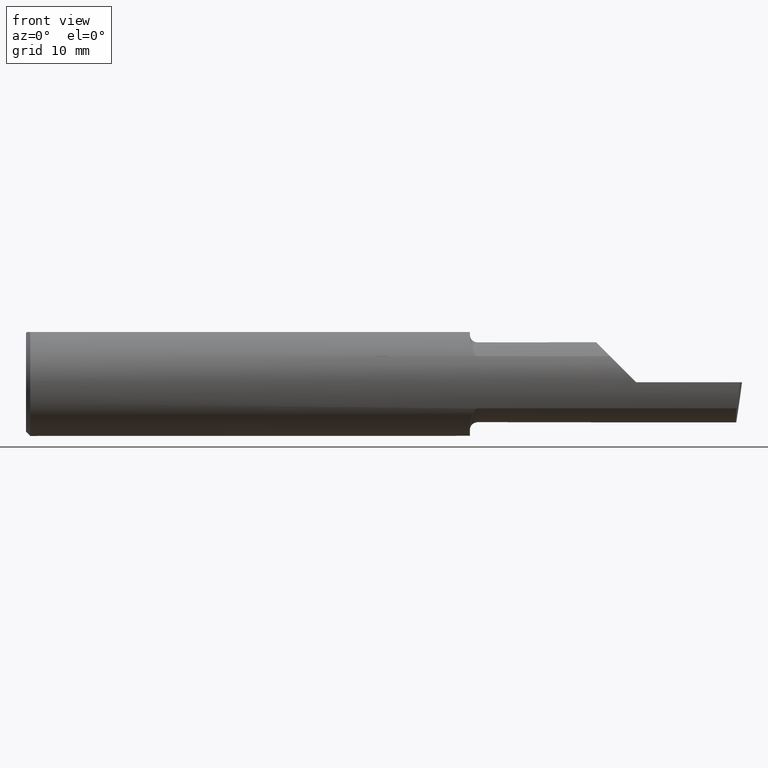
[diagram: clean part render]
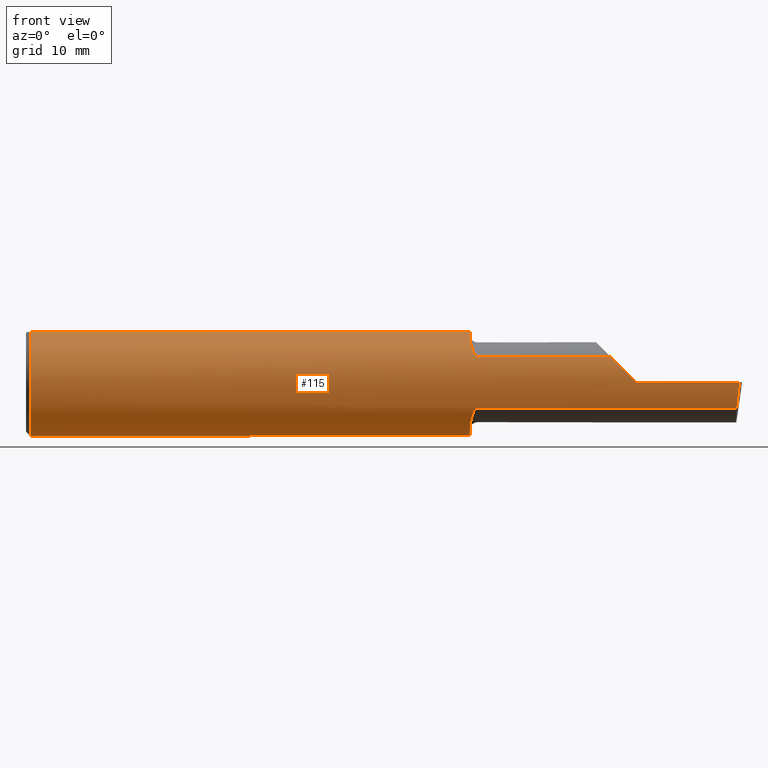
[diagram: same view with one face highlighted and labeled with its STEP entity id]
A machine part, front view. The second image highlights one B-rep face of the part: STEP entity #115.
In plain terms, the highlighted cylindrical surface (partial cylindrical patch) has radius 4.7587 mm, axis along (-1, -0, -0).
Its self-contained STEP definition (entity closure, byte-faithful):
#1 = EDGE_CURVE ( 'NONE', #158, #584, #3, .T. ) ;
#2 = LINE ( 'NONE', #202, #269 ) ;
#3 = B_SPLINE_CURVE_WITH_KNOTS ( 'NONE', 3,
 ( #91, #258, #253, #543, #369, #333, #338, #256, #131, #290, #138, #69, #579, #332 ),
 .UNSPECIFIED., .F., .F.,
 ( 4, 2, 2, 2, 2, 2, 4 ),
 ( 1.968340875534775581E-07, 0.0001667114270246267561, 0.0003332260199617000421, 0.0006662552058358466684, 0.001332313577584133416, 0.001998371949332420489, 0.002664430321080706911 ),
 .UNSPECIFIED. ) ;
#5 = CARTESIAN_POINT ( 'NONE',  ( 1.550000000000000044, -0.09715400696864107122, 0.1601908905959925078 ) ) ;
#6 = CARTESIAN_POINT ( 'NONE',  ( 1.556142321956750507, -0.1426151417460928550, 0.1217894822571234659 ) ) ;
#7 = CARTESIAN_POINT ( 'NONE',  ( 1.563764108097883687, -0.1573043405450770260, 0.1018329020719638545 ) ) ;
#8 = CARTESIAN_POINT ( 'NONE',  ( 1.558072954143139732, -0.1479074971576196940, 0.1152872342625233804 ) ) ;
#9 = VERTEX_POINT ( 'NONE', #31 ) ;
#18 = CARTESIAN_POINT ( 'NONE',  ( 1.568001859868117132, -0.1612625562479369223, 0.09537826053888208422 ) ) ;
#19 = VECTOR ( 'NONE', #274, 39.37007874015748143 ) ;
#29 = ORIENTED_EDGE ( 'NONE', *, *, #135, .T. ) ;
#31 = CARTESIAN_POINT ( 'NONE',  ( 1.550000000000000044, -0.06597272163553659363, 0.1753499999999999781 ) ) ;
#38 = VERTEX_POINT ( 'NONE', #295 ) ;
#39 = LINE ( 'NONE', #94, #19 ) ;
#40 = CARTESIAN_POINT ( 'NONE',  ( 1.566855994529494422, -0.1603175578889967923, 0.09696363432848481567 ) ) ;
#41 =( BOUNDED_CURVE ( )  B_SPLINE_CURVE ( 3, ( #470, #481, #486, #488 ),
 .UNSPECIFIED., .F., .T. ) 
 B_SPLINE_CURVE_WITH_KNOTS ( ( 4, 4 ),
 ( 0.8516985021657653698, 1.360746882515200484 ),
 .UNSPECIFIED. ) 
 CURVE ( )  GEOMETRIC_REPRESENTATION_ITEM ( )  RATIONAL_B_SPLINE_CURVE ( ( 1.000000000000000000, 0.9785221379938656705, 0.9785221379938656705, 1.000000000000000000 ) ) 
 REPRESENTATION_ITEM ( '' )  );
#57 = AXIS2_PLACEMENT_3D ( 'NONE', #436, #142, #130 ) ;
#60 = CARTESIAN_POINT ( 'NONE',  ( 1.553025912205683312, -0.1310442973014112888, 0.1341609063345044761 ) ) ;
#69 = CARTESIAN_POINT ( 'NONE',  ( 1.550384441902395327, -0.1115101367984837610, -0.1507946173152225067 ) ) ;
#70 = DIRECTION ( 'NONE',  ( -1.000000000000000000, -0.0000000000000000000, -0.0000000000000000000 ) ) ;
#74 = VECTOR ( 'NONE', #288, 39.37007874015748143 ) ;
#86 = VERTEX_POINT ( 'NONE', #502 ) ;
#91 = CARTESIAN_POINT ( 'NONE',  ( 1.574999999999999956, -0.1635956445993029529, -0.09130436773856180632 ) ) ;
#94 = CARTESIAN_POINT ( 'NONE',  ( 1.867500000000000160, -0.1635956445993030639, -0.09130436773856169530 ) ) ;
#98 = DIRECTION ( 'NONE',  ( 1.000000000000000000, 6.829619984160658046E-18, 0.0000000000000000000 ) ) ;
#100 = CARTESIAN_POINT ( 'NONE',  ( 1.570903862568969078, -0.1628809688430619407, 0.09258733509388515637 ) ) ;
#115 = ADVANCED_FACE ( 'NONE', ( #395 ), #372, .T. ) ;
#122 = ORIENTED_EDGE ( 'NONE', *, *, #381, .T. ) ;
#130 = DIRECTION ( 'NONE',  ( 0.0000000000000000000, 0.0000000000000000000, 1.000000000000000000 ) ) ;
#131 = CARTESIAN_POINT ( 'NONE',  ( 1.556145841430604637, -0.1426194794824337253, -0.1217813759115470157 ) ) ;
#135 = EDGE_CURVE ( 'NONE', #567, #251, #356, .T. ) ;
#138 = CARTESIAN_POINT ( 'NONE',  ( 1.551903396790307310, -0.1248165254919059441, -0.1399798634953948739 ) ) ;
#142 = DIRECTION ( 'NONE',  ( -1.000000000000000000, -0.0000000000000000000, -0.0000000000000000000 ) ) ;
#148 = AXIS2_PLACEMENT_3D ( 'NONE', #510, #511, #516 ) ;
#152 = EDGE_CURVE ( 'NONE', #180, #251, #534, .T. ) ;
#158 = VERTEX_POINT ( 'NONE', #214 ) ;
#162 = CARTESIAN_POINT ( 'NONE',  ( 1.574999999999999956, -0.1635956445993027031, 0.09130436773856204224 ) ) ;
#163 = ORIENTED_EDGE ( 'NONE', *, *, #556, .F. ) ;
#166 = B_SPLINE_CURVE_WITH_KNOTS ( 'NONE', 3,
 ( #5, #391, #226, #255, #60, #6, #8, #359, #7, #40, #18, #100, #236, #445 ),
 .UNSPECIFIED., .F., .F.,
 ( 4, 2, 2, 2, 2, 2, 4 ),
 ( 0.0002471551878304213972, 0.0008987327522055595184, 0.001550310316580697694, 0.002201887880955836086, 0.002527676663143405607, 0.002690571054237190368, 0.002853465445330975996 ),
 .UNSPECIFIED. ) ;
#171 = CARTESIAN_POINT ( 'NONE',  ( 2.491672876940991710, -0.1873499999999999888, 6.915950918908297591E-17 ) ) ;
#180 = VERTEX_POINT ( 'NONE', #162 ) ;
#184 = LINE ( 'NONE', #213, #74 ) ;
#187 = EDGE_CURVE ( 'NONE', #86, #158, #39, .T. ) ;
#202 = CARTESIAN_POINT ( 'NONE',  ( 3.377502344341257155E-32, -0.1873499999999999610, 3.267291166268304703E-16 ) ) ;
#204 = CIRCLE ( 'NONE', #323, 0.1873499999999999888 ) ;
#208 = AXIS2_PLACEMENT_3D ( 'NONE', #270, #275, #260 ) ;
#213 = CARTESIAN_POINT ( 'NONE',  ( 0.0000000000000000000, -0.06597272163553657975, 0.1753499999999999781 ) ) ;
#214 = CARTESIAN_POINT ( 'NONE',  ( 1.574999999999999956, -0.1635956445993029529, -0.09130436773856180632 ) ) ;
#226 = CARTESIAN_POINT ( 'NONE',  ( 1.550383728133730266, -0.1114837668894149980, 0.1508119329971097933 ) ) ;
#228 = EDGE_CURVE ( 'NONE', #38, #180, #166, .T. ) ;
#234 = ORIENTED_EDGE ( 'NONE', *, *, #365, .F. ) ;
#236 = CARTESIAN_POINT ( 'NONE',  ( 1.572800914500664504, -0.1635956445997546749, 0.09130436773775280068 ) ) ;
#238 = CARTESIAN_POINT ( 'NONE',  ( 1.550000000000000044, -0.09715400696864107122, -0.1601908905959925078 ) ) ;
#251 = VERTEX_POINT ( 'NONE', #252 ) ;
#252 = CARTESIAN_POINT ( 'NONE',  ( 2.038695632261437130, -0.1635956445993029529, 0.09130436773856188959 ) ) ;
#253 = CARTESIAN_POINT ( 'NONE',  ( 1.570881499230870171, -0.1628722075910989664, -0.09260290410947892570 ) ) ;
#255 = CARTESIAN_POINT ( 'NONE',  ( 1.551891754936544743, -0.1247344934163565761, 0.1400506178720502815 ) ) ;
#256 = CARTESIAN_POINT ( 'NONE',  ( 1.558068207442171227, -0.1478915270140208627, -0.1153063024254926960 ) ) ;
#258 = CARTESIAN_POINT ( 'NONE',  ( 1.572779935319434719, -0.1635956445993029529, -0.09130436773856194510 ) ) ;
#260 = DIRECTION ( 'NONE',  ( 0.0000000000000000000, 0.0000000000000000000, 1.000000000000000000 ) ) ;
#261 = VERTEX_POINT ( 'NONE', #527 ) ;
#265 = EDGE_CURVE ( 'NONE', #271, #567, #2, .T. ) ;
#266 = ORIENTED_EDGE ( 'NONE', *, *, #265, .T. ) ;
#269 = VECTOR ( 'NONE', #70, 39.37007874015748143 ) ;
#270 = CARTESIAN_POINT ( 'NONE',  ( 0.01499999999999999424, 0.0000000000000000000, 0.0000000000000000000 ) ) ;
#271 = VERTEX_POINT ( 'NONE', #171 ) ;
#273 = DIRECTION ( 'NONE',  ( 1.000000000000000000, 0.0000000000000000000, 0.0000000000000000000 ) ) ;
#274 = DIRECTION ( 'NONE',  ( -1.000000000000000000, -6.829619984160658046E-18, -0.0000000000000000000 ) ) ;
#275 = DIRECTION ( 'NONE',  ( -1.000000000000000000, -0.0000000000000000000, -0.0000000000000000000 ) ) ;
#281 = CARTESIAN_POINT ( 'NONE',  ( 0.0000000000000000000, 0.06597272163553663527, 0.1753499999999999781 ) ) ;
#283 = CARTESIAN_POINT ( 'NONE',  ( 2.038695632261437130, -0.1635956445993029529, 0.09130436773856188959 ) ) ;
#284 = ORIENTED_EDGE ( 'NONE', *, *, #152, .F. ) ;
#288 = DIRECTION ( 'NONE',  ( -1.000000000000000000, -0.0000000000000000000, -0.0000000000000000000 ) ) ;
#290 = CARTESIAN_POINT ( 'NONE',  ( 1.553041727949557638, -0.1311116946065050415, -0.1340922927843371804 ) ) ;
#294 = VECTOR ( 'NONE', #273, 39.37007874015748143 ) ;
#295 = CARTESIAN_POINT ( 'NONE',  ( 1.550000000000000044, -0.09715400696864107122, 0.1601908905959925078 ) ) ;
#305 = CARTESIAN_POINT ( 'NONE',  ( 2.129999999999999893, -0.1873499999999999888, 1.065442715258197396E-16 ) ) ;
#314 = EDGE_LOOP ( 'NONE', ( #465, #122, #266, #29, #284, #330, #542, #558, #163, #234, #354, #459, #317 ) ) ;
#317 = ORIENTED_EDGE ( 'NONE', *, *, #1, .F. ) ;
#320 = CIRCLE ( 'NONE', #57, 0.1873499999999999888 ) ;
#323 = AXIS2_PLACEMENT_3D ( 'NONE', #520, #522, #530 ) ;
#329 = CARTESIAN_POINT ( 'NONE',  ( 2.097861799102314961, -0.1873500000000000165, 0.03213820089768509858 ) ) ;
#330 = ORIENTED_EDGE ( 'NONE', *, *, #228, .F. ) ;
#332 = CARTESIAN_POINT ( 'NONE',  ( 1.550000000000000044, -0.09715400696864107122, -0.1601908905959925078 ) ) ;
#333 = CARTESIAN_POINT ( 'NONE',  ( 1.563743174082349752, -0.1572750258711007043, -0.1018777902325216089 ) ) ;
#337 = EDGE_CURVE ( 'NONE', #9, #432, #184, .T. ) ;
#338 = CARTESIAN_POINT ( 'NONE',  ( 1.562184598714913220, -0.1550322129197695409, -0.1052705638704085622 ) ) ;
#342 = CARTESIAN_POINT ( 'NONE',  ( 0.01499999999999999424, 0.0000000000000000000, -0.1873499999999999888 ) ) ;
#351 = EDGE_CURVE ( 'NONE', #444, #261, #566, .T. ) ;
#352 = CARTESIAN_POINT ( 'NONE',  ( 2.129999999999999893, -0.1873499999999999888, 1.065442715258197396E-16 ) ) ;
#354 = ORIENTED_EDGE ( 'NONE', *, *, #351, .T. ) ;
#356 =( BOUNDED_CURVE ( )  B_SPLINE_CURVE ( 3, ( #305, #329, #514, #283 ),
 .UNSPECIFIED., .F., .T. ) 
 B_SPLINE_CURVE_WITH_KNOTS ( ( 4, 4 ),
 ( 4.712388980384689674, 5.221437360734125122 ),
 .UNSPECIFIED. ) 
 CURVE ( )  GEOMETRIC_REPRESENTATION_ITEM ( )  RATIONAL_B_SPLINE_CURVE ( ( 1.000000000000000000, 0.9785221379938656705, 0.9785221379938656705, 1.000000000000000000 ) ) 
 REPRESENTATION_ITEM ( '' )  );
#359 = CARTESIAN_POINT ( 'NONE',  ( 1.562204638458737138, -0.1550630761760522502, 0.1052254855377565412 ) ) ;
#360 = CARTESIAN_POINT ( 'NONE',  ( 1.867500000000000160, -0.1635956445993030639, 0.09130436773856169530 ) ) ;
#364 = DIRECTION ( 'NONE',  ( 0.0000000000000000000, 0.0000000000000000000, 1.000000000000000000 ) ) ;
#365 = EDGE_CURVE ( 'NONE', #444, #572, #320, .T. ) ;
#369 = CARTESIAN_POINT ( 'NONE',  ( 1.566814909379089071, -0.1602818635245155943, -0.09702252612905327978 ) ) ;
#372 = CYLINDRICAL_SURFACE ( 'NONE', #378, 0.1873499999999999888 ) ;
#378 = AXIS2_PLACEMENT_3D ( 'NONE', #384, #426, #364 ) ;
#381 = EDGE_CURVE ( 'NONE', #86, #271, #41, .T. ) ;
#384 = CARTESIAN_POINT ( 'NONE',  ( 0.0000000000000000000, 0.0000000000000000000, 0.0000000000000000000 ) ) ;
#391 = CARTESIAN_POINT ( 'NONE',  ( 1.549999999999999822, -0.1045012500212952056, 0.1557348687830036327 ) ) ;
#395 = FACE_OUTER_BOUND ( 'NONE', #314, .T. ) ;
#411 = EDGE_CURVE ( 'NONE', #584, #261, #460, .T. ) ;
#413 = EDGE_CURVE ( 'NONE', #9, #38, #204, .T. ) ;
#426 = DIRECTION ( 'NONE',  ( -1.000000000000000000, -0.0000000000000000000, -0.0000000000000000000 ) ) ;
#432 = VERTEX_POINT ( 'NONE', #518 ) ;
#436 = CARTESIAN_POINT ( 'NONE',  ( 0.01499999999999999424, 0.0000000000000000000, 0.0000000000000000000 ) ) ;
#444 = VERTEX_POINT ( 'NONE', #545 ) ;
#445 = CARTESIAN_POINT ( 'NONE',  ( 1.574999999999999956, -0.1635956445993027031, 0.09130436773856204224 ) ) ;
#459 = ORIENTED_EDGE ( 'NONE', *, *, #411, .F. ) ;
#460 = CIRCLE ( 'NONE', #148, 0.1873499999999999888 ) ;
#464 = CIRCLE ( 'NONE', #208, 0.1873499999999999888 ) ;
#465 = ORIENTED_EDGE ( 'NONE', *, *, #187, .F. ) ;
#470 = CARTESIAN_POINT ( 'NONE',  ( 2.481080296960508580, -0.1635956445993030639, -0.09130436773856169530 ) ) ;
#481 = CARTESIAN_POINT ( 'NONE',  ( 2.484117089522337452, -0.1792580844883771285, -0.06324101202936134591 ) ) ;
#486 = CARTESIAN_POINT ( 'NONE',  ( 2.487725449370724817, -0.1873500000000000443, -0.03213820089768505694 ) ) ;
#488 = CARTESIAN_POINT ( 'NONE',  ( 2.491672876940991710, -0.1873499999999999888, 6.915950918908297591E-17 ) ) ;
#502 = CARTESIAN_POINT ( 'NONE',  ( 2.481080296960508580, -0.1635956445993030639, -0.09130436773856169530 ) ) ;
#510 = CARTESIAN_POINT ( 'NONE',  ( 1.550000000000000044, 0.0000000000000000000, 0.0000000000000000000 ) ) ;
#511 = DIRECTION ( 'NONE',  ( 1.000000000000000000, 6.829619984160658046E-18, 0.0000000000000000000 ) ) ;
#514 = CARTESIAN_POINT ( 'NONE',  ( 2.066758987970638284, -0.1792580844883770730, 0.06324101202936138755 ) ) ;
#516 = DIRECTION ( 'NONE',  ( 0.0000000000000000000, 1.000000000000000000, 0.0000000000000000000 ) ) ;
#518 = CARTESIAN_POINT ( 'NONE',  ( 0.01499999999999997863, -0.06597272163553657975, 0.1753499999999999781 ) ) ;
#520 = CARTESIAN_POINT ( 'NONE',  ( 1.550000000000000044, 0.0000000000000000000, 0.0000000000000000000 ) ) ;
#522 = DIRECTION ( 'NONE',  ( 1.000000000000000000, 6.829619984160658046E-18, 0.0000000000000000000 ) ) ;
#523 = VECTOR ( 'NONE', #98, 39.37007874015748143 ) ;
#527 = CARTESIAN_POINT ( 'NONE',  ( 1.550000000000000044, 0.06597272163553663527, 0.1753499999999999781 ) ) ;
#530 = DIRECTION ( 'NONE',  ( 0.0000000000000000000, 1.000000000000000000, 0.0000000000000000000 ) ) ;
#534 = LINE ( 'NONE', #360, #523 ) ;
#542 = ORIENTED_EDGE ( 'NONE', *, *, #413, .F. ) ;
#543 = CARTESIAN_POINT ( 'NONE',  ( 1.567975941902154391, -0.1612443294219079171, -0.09540922431498241596 ) ) ;
#545 = CARTESIAN_POINT ( 'NONE',  ( 0.01499999999999999424, 0.06597272163553663527, 0.1753499999999999781 ) ) ;
#556 = EDGE_CURVE ( 'NONE', #572, #432, #464, .T. ) ;
#558 = ORIENTED_EDGE ( 'NONE', *, *, #337, .T. ) ;
#566 = LINE ( 'NONE', #281, #294 ) ;
#567 = VERTEX_POINT ( 'NONE', #352 ) ;
#572 = VERTEX_POINT ( 'NONE', #342 ) ;
#579 = CARTESIAN_POINT ( 'NONE',  ( 1.550000000000000044, -0.1045082199249679489, -0.1557306416133594495 ) ) ;
#584 = VERTEX_POINT ( 'NONE', #238 ) ;